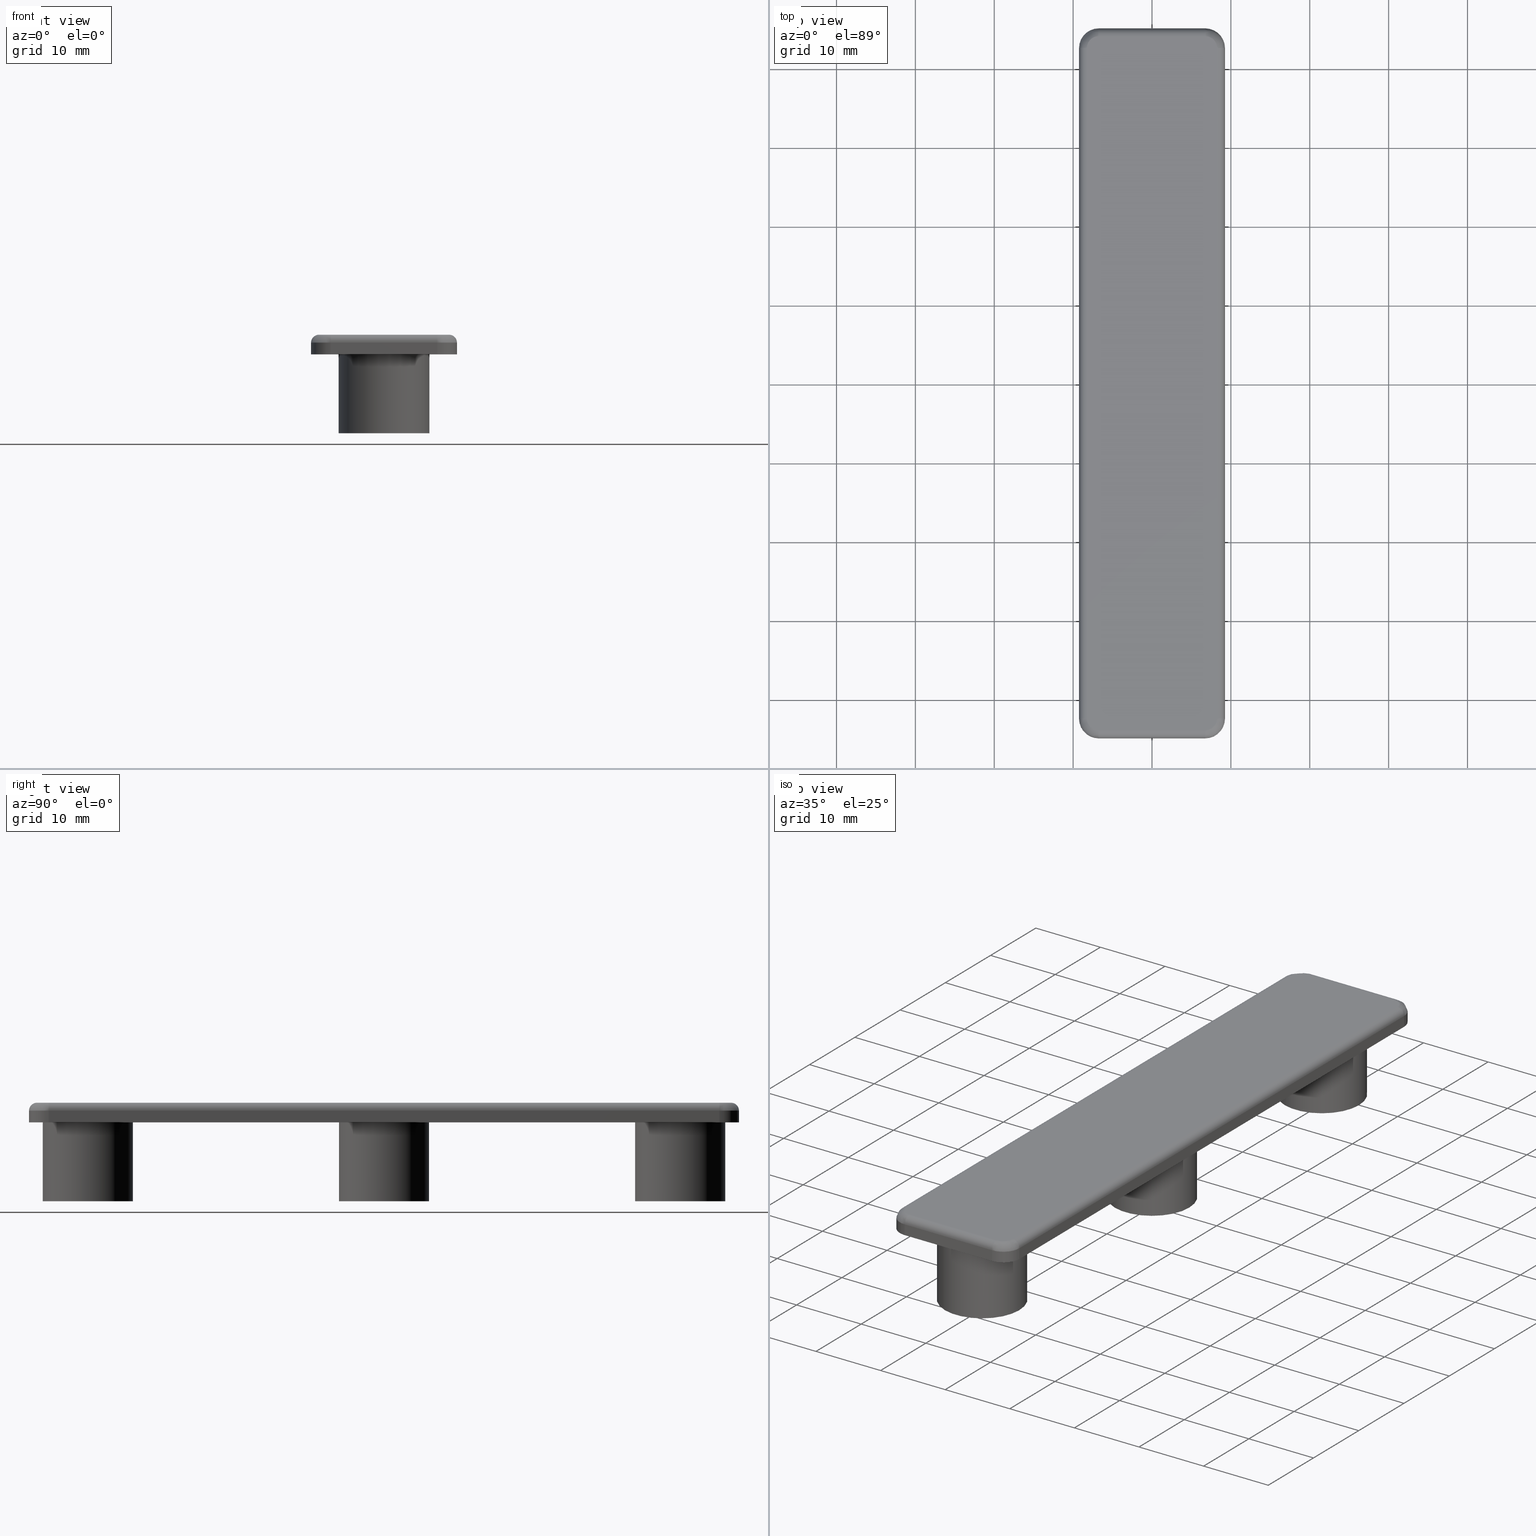
[diagram: canonical four-view strip — front | top / right | iso, engineering-drawing reading convention]
A machine part, canonical four-view strip (front | top / right | iso — engineering-drawing reading convention). The complete STEP part file that produces these views, byte-faithful:
ISO-10303-21;
HEADER;
/****************************************************************
 * Generated by software with PDE/Lib inside                    *
 * PDElib Version v4.4, created Mon 02/23/2004                  *
 * International Technegroup Inc. (www.iti-oh.com)              *
 ****************************************************************/
FILE_DESCRIPTION(('STEP AP203'),'2;1');
FILE_NAME('18.068.00.stp','2011-03-21T15:59:43',(''),(''),'2009.3.110','THINKDESIGN','');
FILE_SCHEMA(('CONFIG_CONTROL_DESIGN'));
ENDSEC;
DATA;
#2=CARTESIAN_POINT('',(11.100049733935066,-53.999955233543915,1.359364E-015));
#3=DIRECTION('',(0.0,0.0,-1.0));
#4=DIRECTION('',(-1.0,0.0,0.0));
#5=AXIS2_PLACEMENT_3D('',#2,#3,#4);
#6=PLANE('',#5);
#7=CARTESIAN_POINT('',(-6.749954999972943,44.999999999819920,-8.266311E-016));
#8=VERTEX_POINT('',#7);
#9=CARTESIAN_POINT('',(6.750044999972943,44.999999999819920,8.266421E-016));
#10=VERTEX_POINT('',#9);
#11=CARTESIAN_POINT('',(-6.749954999973063,44.999999999819991,-8.266311E-016));
#12=DIRECTION('',(1.0,0.0,0.0));
#13=VECTOR('',#12,13.499999999946006);
#14=LINE('',#11,#13);
#15=EDGE_CURVE('',#8,#10,#14,.T.);
#16=ORIENTED_EDGE('',*,*,#15,.T.);
#17=CARTESIAN_POINT('',(9.250044999962938,42.499999999829924,1.132804E-015));
#18=VERTEX_POINT('',#17);
#19=CARTESIAN_POINT('',(6.750044999972943,42.499999999829924,8.266421E-016));
#20=DIRECTION('',(1.224647E-016,0.0,-1.0));
#21=DIRECTION('',(-1.0,0.0,-1.224647E-016));
#22=AXIS2_PLACEMENT_3D('',#19,#20,#21);
#23=CIRCLE('',#22,2.499999999990000);
#24=EDGE_CURVE('',#10,#18,#23,.T.);
#25=ORIENTED_EDGE('',*,*,#24,.T.);
#26=CARTESIAN_POINT('',(9.250044999962938,-42.499954999830152,1.132804E-015));
#27=VERTEX_POINT('',#26);
#28=CARTESIAN_POINT('',(9.250044999962938,42.499999999829924,1.132804E-015));
#29=DIRECTION('',(0.0,-1.0,0.0));
#30=VECTOR('',#29,84.999954999660019);
#31=LINE('',#28,#30);
#32=EDGE_CURVE('',#18,#27,#31,.T.);
#33=ORIENTED_EDGE('',*,*,#32,.T.);
#34=CARTESIAN_POINT('',(6.750044999972943,-44.999954999820147,8.266421E-016));
#35=VERTEX_POINT('',#34);
#36=CARTESIAN_POINT('',(6.750044999972943,-42.499954999830152,8.266421E-016));
#37=DIRECTION('',(1.224647E-016,0.0,-1.0));
#38=DIRECTION('',(-1.0,0.0,-1.224647E-016));
#39=AXIS2_PLACEMENT_3D('',#36,#37,#38);
#40=CIRCLE('',#39,2.499999999990000);
#41=EDGE_CURVE('',#27,#35,#40,.T.);
#42=ORIENTED_EDGE('',*,*,#41,.T.);
#43=CARTESIAN_POINT('',(-6.749954999972943,-44.999954999820147,-8.266311E-016));
#44=VERTEX_POINT('',#43);
#45=CARTESIAN_POINT('',(6.750044999972943,-44.999954999820147,8.266421E-016));
#46=DIRECTION('',(-1.0,0.0,0.0));
#47=VECTOR('',#46,13.499999999946006);
#48=LINE('',#45,#47);
#49=EDGE_CURVE('',#35,#44,#48,.T.);
#50=ORIENTED_EDGE('',*,*,#49,.T.);
#51=CARTESIAN_POINT('',(-9.249954999962938,-42.499954999830152,-1.132793E-015));
#52=VERTEX_POINT('',#51);
#53=CARTESIAN_POINT('',(-6.749954999972943,-42.499954999830152,-8.266311E-016));
#54=DIRECTION('',(1.224647E-016,0.0,-1.0));
#55=DIRECTION('',(-1.0,0.0,-1.224647E-016));
#56=AXIS2_PLACEMENT_3D('',#53,#54,#55);
#57=CIRCLE('',#56,2.499999999990000);
#58=EDGE_CURVE('',#44,#52,#57,.T.);
#59=ORIENTED_EDGE('',*,*,#58,.T.);
#60=CARTESIAN_POINT('',(-9.249954999962938,42.499999999829924,-1.132793E-015));
#61=VERTEX_POINT('',#60);
#62=CARTESIAN_POINT('',(-9.249954999962938,-42.499954999830152,-1.132793E-015));
#63=DIRECTION('',(0.0,1.0,0.0));
#64=VECTOR('',#63,84.999954999660019);
#65=LINE('',#62,#64);
#66=EDGE_CURVE('',#52,#61,#65,.T.);
#67=ORIENTED_EDGE('',*,*,#66,.T.);
#68=CARTESIAN_POINT('',(-6.749954999972943,42.499999999829924,-8.266311E-016));
#69=DIRECTION('',(1.224647E-016,0.0,-1.0));
#70=DIRECTION('',(-1.0,0.0,-1.224647E-016));
#71=AXIS2_PLACEMENT_3D('',#68,#69,#70);
#72=CIRCLE('',#71,2.499999999990000);
#73=EDGE_CURVE('',#61,#8,#72,.T.);
#74=ORIENTED_EDGE('',*,*,#73,.T.);
#75=EDGE_LOOP('',(#16,#25,#33,#42,#50,#59,#67,#74));
#76=FACE_OUTER_BOUND('',#75,.T.);
#77=CARTESIAN_POINT('',(5.749999999977001,-37.549999999849661,7.041719E-016));
#78=VERTEX_POINT('',#77);
#79=CARTESIAN_POINT('',(-5.749999999976808,-37.549999999849661,-7.041719E-016));
#80=VERTEX_POINT('',#79);
#81=CARTESIAN_POINT('',(0.0,-37.549999999849661,0.0));
#82=DIRECTION('',(1.224647E-016,0.0,-1.0));
#83=DIRECTION('',(-1.0,0.0,-1.224647E-016));
#84=AXIS2_PLACEMENT_3D('',#81,#82,#83);
#85=CIRCLE('',#84,5.749999999977001);
#86=EDGE_CURVE('',#78,#80,#85,.T.);
#87=ORIENTED_EDGE('',*,*,#86,.F.);
#88=CARTESIAN_POINT('',(0.0,-37.549999999849661,0.0));
#89=DIRECTION('',(1.224647E-016,0.0,-1.0));
#90=DIRECTION('',(-1.0,0.0,-1.224647E-016));
#91=AXIS2_PLACEMENT_3D('',#88,#89,#90);
#92=CIRCLE('',#91,5.749999999977001);
#93=EDGE_CURVE('',#80,#78,#92,.T.);
#94=ORIENTED_EDGE('',*,*,#93,.F.);
#95=EDGE_LOOP('',(#87,#94));
#96=FACE_BOUND('',#95,.T.);
#97=CARTESIAN_POINT('',(5.749999999977001,0.0,7.041719E-016));
#98=VERTEX_POINT('',#97);
#99=CARTESIAN_POINT('',(-5.749999999976808,0.0,-7.041719E-016));
#100=VERTEX_POINT('',#99);
#101=CARTESIAN_POINT('',(0.0,0.0,0.0));
#102=DIRECTION('',(1.224647E-016,0.0,-1.0));
#103=DIRECTION('',(-1.0,0.0,-1.224647E-016));
#104=AXIS2_PLACEMENT_3D('',#101,#102,#103);
#105=CIRCLE('',#104,5.749999999977001);
#106=EDGE_CURVE('',#98,#100,#105,.T.);
#107=ORIENTED_EDGE('',*,*,#106,.F.);
#108=CARTESIAN_POINT('',(0.0,0.0,0.0));
#109=DIRECTION('',(1.224647E-016,0.0,-1.0));
#110=DIRECTION('',(-1.0,0.0,-1.224647E-016));
#111=AXIS2_PLACEMENT_3D('',#108,#109,#110);
#112=CIRCLE('',#111,5.749999999977001);
#113=EDGE_CURVE('',#100,#98,#112,.T.);
#114=ORIENTED_EDGE('',*,*,#113,.F.);
#115=EDGE_LOOP('',(#107,#114));
#116=FACE_BOUND('',#115,.T.);
#117=CARTESIAN_POINT('',(5.749999999977001,37.549999999849661,7.041719E-016));
#118=VERTEX_POINT('',#117);
#119=CARTESIAN_POINT('',(-5.749999999976808,37.549999999849661,-7.041719E-016));
#120=VERTEX_POINT('',#119);
#121=CARTESIAN_POINT('',(0.0,37.549999999849661,0.0));
#122=DIRECTION('',(1.224647E-016,0.0,-1.0));
#123=DIRECTION('',(-1.0,0.0,-1.224647E-016));
#124=AXIS2_PLACEMENT_3D('',#121,#122,#123);
#125=CIRCLE('',#124,5.749999999977001);
#126=EDGE_CURVE('',#118,#120,#125,.T.);
#127=ORIENTED_EDGE('',*,*,#126,.F.);
#128=CARTESIAN_POINT('',(0.0,37.549999999849661,0.0));
#129=DIRECTION('',(1.224647E-016,0.0,-1.0));
#130=DIRECTION('',(-1.0,0.0,-1.224647E-016));
#131=AXIS2_PLACEMENT_3D('',#128,#129,#130);
#132=CIRCLE('',#131,5.749999999977001);
#133=EDGE_CURVE('',#120,#118,#132,.T.);
#134=ORIENTED_EDGE('',*,*,#133,.F.);
#135=EDGE_LOOP('',(#127,#134));
#136=FACE_BOUND('',#135,.T.);
#137=ADVANCED_FACE('',(#76,#96,#116,#136),#6,.T.);
#138=CARTESIAN_POINT('',(11.100049733935066,-53.999955233543915,1.359364E-015));
#139=DIRECTION('',(0.0,0.0,-1.0));
#140=DIRECTION('',(-1.0,0.0,0.0));
#141=AXIS2_PLACEMENT_3D('',#138,#139,#140);
#142=PLANE('',#141);
#143=CARTESIAN_POINT('',(4.999999999980001,37.549999999849661,6.123234E-016));
#144=VERTEX_POINT('',#143);
#145=CARTESIAN_POINT('',(-4.999999999979991,37.549999999849661,-6.123234E-016));
#146=VERTEX_POINT('',#145);
#147=CARTESIAN_POINT('',(0.0,37.549999999849661,0.0));
#148=DIRECTION('',(-1.224647E-016,0.0,1.0));
#149=DIRECTION('',(-1.0,0.0,-1.224647E-016));
#150=AXIS2_PLACEMENT_3D('',#147,#148,#149);
#151=CIRCLE('',#150,4.999999999980001);
#152=EDGE_CURVE('',#144,#146,#151,.T.);
#153=ORIENTED_EDGE('',*,*,#152,.F.);
#154=CARTESIAN_POINT('',(0.0,37.549999999849661,0.0));
#155=DIRECTION('',(-1.224647E-016,0.0,1.0));
#156=DIRECTION('',(-1.0,0.0,-1.224647E-016));
#157=AXIS2_PLACEMENT_3D('',#154,#155,#156);
#158=CIRCLE('',#157,4.999999999980001);
#159=EDGE_CURVE('',#146,#144,#158,.T.);
#160=ORIENTED_EDGE('',*,*,#159,.F.);
#161=EDGE_LOOP('',(#153,#160));
#162=FACE_OUTER_BOUND('',#161,.T.);
#163=ADVANCED_FACE('',(#162),#142,.T.);
#164=CARTESIAN_POINT('',(11.100049733935066,-53.999955233543915,1.359364E-015));
#165=DIRECTION('',(0.0,0.0,-1.0));
#166=DIRECTION('',(-1.0,0.0,0.0));
#167=AXIS2_PLACEMENT_3D('',#164,#165,#166);
#168=PLANE('',#167);
#169=CARTESIAN_POINT('',(4.999999999980001,0.0,6.123234E-016));
#170=VERTEX_POINT('',#169);
#171=CARTESIAN_POINT('',(-4.999999999979991,0.0,-6.123234E-016));
#172=VERTEX_POINT('',#171);
#173=CARTESIAN_POINT('',(0.0,0.0,0.0));
#174=DIRECTION('',(-1.224647E-016,0.0,1.0));
#175=DIRECTION('',(-1.0,0.0,-1.224647E-016));
#176=AXIS2_PLACEMENT_3D('',#173,#174,#175);
#177=CIRCLE('',#176,4.999999999980001);
#178=EDGE_CURVE('',#170,#172,#177,.T.);
#179=ORIENTED_EDGE('',*,*,#178,.F.);
#180=CARTESIAN_POINT('',(0.0,0.0,0.0));
#181=DIRECTION('',(-1.224647E-016,0.0,1.0));
#182=DIRECTION('',(-1.0,0.0,-1.224647E-016));
#183=AXIS2_PLACEMENT_3D('',#180,#181,#182);
#184=CIRCLE('',#183,4.999999999980001);
#185=EDGE_CURVE('',#172,#170,#184,.T.);
#186=ORIENTED_EDGE('',*,*,#185,.F.);
#187=EDGE_LOOP('',(#179,#186));
#188=FACE_OUTER_BOUND('',#187,.T.);
#189=ADVANCED_FACE('',(#188),#168,.T.);
#190=CARTESIAN_POINT('',(11.100049733935066,-53.999955233543915,1.359364E-015));
#191=DIRECTION('',(0.0,0.0,-1.0));
#192=DIRECTION('',(-1.0,0.0,0.0));
#193=AXIS2_PLACEMENT_3D('',#190,#191,#192);
#194=PLANE('',#193);
#195=CARTESIAN_POINT('',(4.999999999980001,-37.549999999849661,6.123234E-016));
#196=VERTEX_POINT('',#195);
#197=CARTESIAN_POINT('',(-4.999999999979991,-37.549999999849661,-6.123234E-016));
#198=VERTEX_POINT('',#197);
#199=CARTESIAN_POINT('',(0.0,-37.549999999849661,0.0));
#200=DIRECTION('',(-1.224647E-016,0.0,1.0));
#201=DIRECTION('',(-1.0,0.0,-1.224647E-016));
#202=AXIS2_PLACEMENT_3D('',#199,#200,#201);
#203=CIRCLE('',#202,4.999999999980001);
#204=EDGE_CURVE('',#196,#198,#203,.T.);
#205=ORIENTED_EDGE('',*,*,#204,.F.);
#206=CARTESIAN_POINT('',(0.0,-37.549999999849661,0.0));
#207=DIRECTION('',(-1.224647E-016,0.0,1.0));
#208=DIRECTION('',(-1.0,0.0,-1.224647E-016));
#209=AXIS2_PLACEMENT_3D('',#206,#207,#208);
#210=CIRCLE('',#209,4.999999999980001);
#211=EDGE_CURVE('',#198,#196,#210,.T.);
#212=ORIENTED_EDGE('',*,*,#211,.F.);
#213=EDGE_LOOP('',(#205,#212));
#214=FACE_OUTER_BOUND('',#213,.T.);
#215=ADVANCED_FACE('',(#214),#194,.T.);
#216=CARTESIAN_POINT('',(0.0,-37.549999999849661,0.0));
#217=DIRECTION('',(1.224647E-016,0.0,-1.0));
#218=DIRECTION('',(-1.0,0.0,-1.224647E-016));
#219=AXIS2_PLACEMENT_3D('',#216,#217,#218);
#220=CYLINDRICAL_SURFACE('',#219,5.749999999977001);
#221=CARTESIAN_POINT('',(5.749999999977002,-37.549999999849661,-10.0));
#222=VERTEX_POINT('',#221);
#223=CARTESIAN_POINT('',(-5.749999999976807,-37.549999999849661,-10.0));
#224=VERTEX_POINT('',#223);
#225=CARTESIAN_POINT('',(1.224647E-015,-37.549999999849661,-10.0));
#226=DIRECTION('',(1.224647E-016,0.0,-1.0));
#227=DIRECTION('',(-1.0,0.0,-1.224647E-016));
#228=AXIS2_PLACEMENT_3D('',#225,#226,#227);
#229=CIRCLE('',#228,5.749999999977001);
#230=EDGE_CURVE('',#222,#224,#229,.T.);
#231=ORIENTED_EDGE('',*,*,#230,.F.);
#232=CARTESIAN_POINT('',(1.224647E-015,-37.549999999849661,-10.0));
#233=DIRECTION('',(1.224647E-016,0.0,-1.0));
#234=DIRECTION('',(-1.0,0.0,-1.224647E-016));
#235=AXIS2_PLACEMENT_3D('',#232,#233,#234);
#236=CIRCLE('',#235,5.749999999977001);
#237=EDGE_CURVE('',#224,#222,#236,.T.);
#238=ORIENTED_EDGE('',*,*,#237,.F.);
#239=CARTESIAN_POINT('',(-5.749999999976808,-37.549999999849661,-7.041719E-016));
#240=DIRECTION('',(0.0,0.0,-1.0));
#241=VECTOR('',#240,10.0);
#242=LINE('',#239,#241);
#243=EDGE_CURVE('',#80,#224,#242,.T.);
#244=ORIENTED_EDGE('',*,*,#243,.F.);
#245=ORIENTED_EDGE('',*,*,#93,.T.);
#246=ORIENTED_EDGE('',*,*,#86,.T.);
#247=ORIENTED_EDGE('',*,*,#243,.T.);
#248=EDGE_LOOP('',(#231,#238,#244,#245,#246,#247));
#249=FACE_OUTER_BOUND('',#248,.T.);
#250=ADVANCED_FACE('',(#249),#220,.T.);
#251=CARTESIAN_POINT('',(0.0,-37.549999999849661,0.0));
#252=DIRECTION('',(-1.224647E-016,0.0,1.0));
#253=DIRECTION('',(-1.0,-2.449294E-016,-1.224647E-016));
#254=AXIS2_PLACEMENT_3D('',#251,#252,#253);
#255=CYLINDRICAL_SURFACE('',#254,4.999999999980001);
#256=CARTESIAN_POINT('',(4.999999999980002,-37.549999999849661,-10.0));
#257=VERTEX_POINT('',#256);
#258=CARTESIAN_POINT('',(-4.999999999979990,-37.549999999849661,-10.0));
#259=VERTEX_POINT('',#258);
#260=CARTESIAN_POINT('',(1.224647E-015,-37.549999999849661,-10.0));
#261=DIRECTION('',(-1.224647E-016,0.0,1.0));
#262=DIRECTION('',(-1.0,0.0,-1.224647E-016));
#263=AXIS2_PLACEMENT_3D('',#260,#261,#262);
#264=CIRCLE('',#263,4.999999999980001);
#265=EDGE_CURVE('',#257,#259,#264,.T.);
#266=ORIENTED_EDGE('',*,*,#265,.F.);
#267=CARTESIAN_POINT('',(1.224647E-015,-37.549999999849661,-10.0));
#268=DIRECTION('',(-1.224647E-016,0.0,1.0));
#269=DIRECTION('',(-1.0,0.0,-1.224647E-016));
#270=AXIS2_PLACEMENT_3D('',#267,#268,#269);
#271=CIRCLE('',#270,4.999999999980001);
#272=EDGE_CURVE('',#259,#257,#271,.T.);
#273=ORIENTED_EDGE('',*,*,#272,.F.);
#274=CARTESIAN_POINT('',(-4.999999999979991,-37.549999999849661,-6.123234E-016));
#275=DIRECTION('',(0.0,0.0,-1.0));
#276=VECTOR('',#275,10.0);
#277=LINE('',#274,#276);
#278=EDGE_CURVE('',#198,#259,#277,.T.);
#279=ORIENTED_EDGE('',*,*,#278,.F.);
#280=ORIENTED_EDGE('',*,*,#211,.T.);
#281=ORIENTED_EDGE('',*,*,#204,.T.);
#282=ORIENTED_EDGE('',*,*,#278,.T.);
#283=EDGE_LOOP('',(#266,#273,#279,#280,#281,#282));
#284=FACE_OUTER_BOUND('',#283,.T.);
#285=ADVANCED_FACE('',(#284),#255,.F.);
#286=CARTESIAN_POINT('',(6.900004733746756,-44.450004733568676,-10.0));
#287=DIRECTION('',(0.0,0.0,-1.0));
#288=DIRECTION('',(-1.0,0.0,0.0));
#289=AXIS2_PLACEMENT_3D('',#286,#287,#288);
#290=PLANE('',#289);
#291=ORIENTED_EDGE('',*,*,#237,.T.);
#292=ORIENTED_EDGE('',*,*,#230,.T.);
#293=EDGE_LOOP('',(#291,#292));
#294=FACE_OUTER_BOUND('',#293,.T.);
#295=ORIENTED_EDGE('',*,*,#272,.T.);
#296=ORIENTED_EDGE('',*,*,#265,.T.);
#297=EDGE_LOOP('',(#295,#296));
#298=FACE_BOUND('',#297,.T.);
#299=ADVANCED_FACE('',(#294,#298),#290,.T.);
#300=CARTESIAN_POINT('',(0.0,0.0,0.0));
#301=DIRECTION('',(1.224647E-016,0.0,-1.0));
#302=DIRECTION('',(-1.0,0.0,-1.224647E-016));
#303=AXIS2_PLACEMENT_3D('',#300,#301,#302);
#304=CYLINDRICAL_SURFACE('',#303,5.749999999977001);
#305=CARTESIAN_POINT('',(5.749999999977002,0.0,-10.0));
#306=VERTEX_POINT('',#305);
#307=CARTESIAN_POINT('',(-5.749999999976807,0.0,-10.0));
#308=VERTEX_POINT('',#307);
#309=CARTESIAN_POINT('',(1.224647E-015,0.0,-10.0));
#310=DIRECTION('',(1.224647E-016,0.0,-1.0));
#311=DIRECTION('',(-1.0,0.0,-1.224647E-016));
#312=AXIS2_PLACEMENT_3D('',#309,#310,#311);
#313=CIRCLE('',#312,5.749999999977001);
#314=EDGE_CURVE('',#306,#308,#313,.T.);
#315=ORIENTED_EDGE('',*,*,#314,.F.);
#316=CARTESIAN_POINT('',(1.224647E-015,0.0,-10.0));
#317=DIRECTION('',(1.224647E-016,0.0,-1.0));
#318=DIRECTION('',(-1.0,0.0,-1.224647E-016));
#319=AXIS2_PLACEMENT_3D('',#316,#317,#318);
#320=CIRCLE('',#319,5.749999999977001);
#321=EDGE_CURVE('',#308,#306,#320,.T.);
#322=ORIENTED_EDGE('',*,*,#321,.F.);
#323=CARTESIAN_POINT('',(-5.749999999976808,0.0,-7.041719E-016));
#324=DIRECTION('',(0.0,0.0,-1.0));
#325=VECTOR('',#324,10.0);
#326=LINE('',#323,#325);
#327=EDGE_CURVE('',#100,#308,#326,.T.);
#328=ORIENTED_EDGE('',*,*,#327,.F.);
#329=ORIENTED_EDGE('',*,*,#113,.T.);
#330=ORIENTED_EDGE('',*,*,#106,.T.);
#331=ORIENTED_EDGE('',*,*,#327,.T.);
#332=EDGE_LOOP('',(#315,#322,#328,#329,#330,#331));
#333=FACE_OUTER_BOUND('',#332,.T.);
#334=ADVANCED_FACE('',(#333),#304,.T.);
#335=CARTESIAN_POINT('',(0.0,0.0,0.0));
#336=DIRECTION('',(-1.224647E-016,0.0,1.0));
#337=DIRECTION('',(-1.0,-2.449294E-016,-1.224647E-016));
#338=AXIS2_PLACEMENT_3D('',#335,#336,#337);
#339=CYLINDRICAL_SURFACE('',#338,4.999999999980001);
#340=CARTESIAN_POINT('',(4.999999999980002,0.0,-10.0));
#341=VERTEX_POINT('',#340);
#342=CARTESIAN_POINT('',(-4.999999999979990,0.0,-10.0));
#343=VERTEX_POINT('',#342);
#344=CARTESIAN_POINT('',(1.224647E-015,0.0,-10.0));
#345=DIRECTION('',(-1.224647E-016,0.0,1.0));
#346=DIRECTION('',(-1.0,0.0,-1.224647E-016));
#347=AXIS2_PLACEMENT_3D('',#344,#345,#346);
#348=CIRCLE('',#347,4.999999999980001);
#349=EDGE_CURVE('',#341,#343,#348,.T.);
#350=ORIENTED_EDGE('',*,*,#349,.F.);
#351=CARTESIAN_POINT('',(1.224647E-015,0.0,-10.0));
#352=DIRECTION('',(-1.224647E-016,0.0,1.0));
#353=DIRECTION('',(-1.0,0.0,-1.224647E-016));
#354=AXIS2_PLACEMENT_3D('',#351,#352,#353);
#355=CIRCLE('',#354,4.999999999980001);
#356=EDGE_CURVE('',#343,#341,#355,.T.);
#357=ORIENTED_EDGE('',*,*,#356,.F.);
#358=CARTESIAN_POINT('',(-4.999999999979991,0.0,-6.123234E-016));
#359=DIRECTION('',(0.0,0.0,-1.0));
#360=VECTOR('',#359,10.0);
#361=LINE('',#358,#360);
#362=EDGE_CURVE('',#172,#343,#361,.T.);
#363=ORIENTED_EDGE('',*,*,#362,.F.);
#364=ORIENTED_EDGE('',*,*,#185,.T.);
#365=ORIENTED_EDGE('',*,*,#178,.T.);
#366=ORIENTED_EDGE('',*,*,#362,.T.);
#367=EDGE_LOOP('',(#350,#357,#363,#364,#365,#366));
#368=FACE_OUTER_BOUND('',#367,.T.);
#369=ADVANCED_FACE('',(#368),#339,.F.);
#370=CARTESIAN_POINT('',(6.900004733847255,-6.900004733818605,-10.0));
#371=DIRECTION('',(0.0,0.0,-1.0));
#372=DIRECTION('',(-1.0,0.0,0.0));
#373=AXIS2_PLACEMENT_3D('',#370,#371,#372);
#374=PLANE('',#373);
#375=ORIENTED_EDGE('',*,*,#321,.T.);
#376=ORIENTED_EDGE('',*,*,#314,.T.);
#377=EDGE_LOOP('',(#375,#376));
#378=FACE_OUTER_BOUND('',#377,.T.);
#379=ORIENTED_EDGE('',*,*,#356,.T.);
#380=ORIENTED_EDGE('',*,*,#349,.T.);
#381=EDGE_LOOP('',(#379,#380));
#382=FACE_BOUND('',#381,.T.);
#383=ADVANCED_FACE('',(#378,#382),#374,.T.);
#384=CARTESIAN_POINT('',(0.0,37.549999999849661,0.0));
#385=DIRECTION('',(1.224647E-016,0.0,-1.0));
#386=DIRECTION('',(-1.0,0.0,-1.224647E-016));
#387=AXIS2_PLACEMENT_3D('',#384,#385,#386);
#388=CYLINDRICAL_SURFACE('',#387,5.749999999977001);
#389=CARTESIAN_POINT('',(5.749999999977002,37.549999999849661,-10.0));
#390=VERTEX_POINT('',#389);
#391=CARTESIAN_POINT('',(-5.749999999976807,37.549999999849661,-10.0));
#392=VERTEX_POINT('',#391);
#393=CARTESIAN_POINT('',(1.224647E-015,37.549999999849661,-10.0));
#394=DIRECTION('',(1.224647E-016,0.0,-1.0));
#395=DIRECTION('',(-1.0,0.0,-1.224647E-016));
#396=AXIS2_PLACEMENT_3D('',#393,#394,#395);
#397=CIRCLE('',#396,5.749999999977001);
#398=EDGE_CURVE('',#390,#392,#397,.T.);
#399=ORIENTED_EDGE('',*,*,#398,.F.);
#400=CARTESIAN_POINT('',(1.224647E-015,37.549999999849661,-10.0));
#401=DIRECTION('',(1.224647E-016,0.0,-1.0));
#402=DIRECTION('',(-1.0,0.0,-1.224647E-016));
#403=AXIS2_PLACEMENT_3D('',#400,#401,#402);
#404=CIRCLE('',#403,5.749999999977001);
#405=EDGE_CURVE('',#392,#390,#404,.T.);
#406=ORIENTED_EDGE('',*,*,#405,.F.);
#407=CARTESIAN_POINT('',(-5.749999999976808,37.549999999849661,-7.041719E-016));
#408=DIRECTION('',(0.0,0.0,-1.0));
#409=VECTOR('',#408,10.0);
#410=LINE('',#407,#409);
#411=EDGE_CURVE('',#120,#392,#410,.T.);
#412=ORIENTED_EDGE('',*,*,#411,.F.);
#413=ORIENTED_EDGE('',*,*,#133,.T.);
#414=ORIENTED_EDGE('',*,*,#126,.T.);
#415=ORIENTED_EDGE('',*,*,#411,.T.);
#416=EDGE_LOOP('',(#399,#406,#412,#413,#414,#415));
#417=FACE_OUTER_BOUND('',#416,.T.);
#418=ADVANCED_FACE('',(#417),#388,.T.);
#419=CARTESIAN_POINT('',(0.0,37.549999999849661,0.0));
#420=DIRECTION('',(-1.224647E-016,0.0,1.0));
#421=DIRECTION('',(-1.0,-2.449294E-016,-1.224647E-016));
#422=AXIS2_PLACEMENT_3D('',#419,#420,#421);
#423=CYLINDRICAL_SURFACE('',#422,4.999999999980001);
#424=CARTESIAN_POINT('',(4.999999999980002,37.549999999849661,-10.0));
#425=VERTEX_POINT('',#424);
#426=CARTESIAN_POINT('',(-4.999999999979990,37.549999999849661,-10.0));
#427=VERTEX_POINT('',#426);
#428=CARTESIAN_POINT('',(1.224647E-015,37.549999999849661,-10.0));
#429=DIRECTION('',(-1.224647E-016,0.0,1.0));
#430=DIRECTION('',(-1.0,0.0,-1.224647E-016));
#431=AXIS2_PLACEMENT_3D('',#428,#429,#430);
#432=CIRCLE('',#431,4.999999999980001);
#433=EDGE_CURVE('',#425,#427,#432,.T.);
#434=ORIENTED_EDGE('',*,*,#433,.F.);
#435=CARTESIAN_POINT('',(1.224647E-015,37.549999999849661,-10.0));
#436=DIRECTION('',(-1.224647E-016,0.0,1.0));
#437=DIRECTION('',(-1.0,0.0,-1.224647E-016));
#438=AXIS2_PLACEMENT_3D('',#435,#436,#437);
#439=CIRCLE('',#438,4.999999999980001);
#440=EDGE_CURVE('',#427,#425,#439,.T.);
#441=ORIENTED_EDGE('',*,*,#440,.F.);
#442=CARTESIAN_POINT('',(-4.999999999979991,37.549999999849661,-6.123234E-016));
#443=DIRECTION('',(0.0,0.0,-1.0));
#444=VECTOR('',#443,10.0);
#445=LINE('',#442,#444);
#446=EDGE_CURVE('',#146,#427,#445,.T.);
#447=ORIENTED_EDGE('',*,*,#446,.F.);
#448=ORIENTED_EDGE('',*,*,#159,.T.);
#449=ORIENTED_EDGE('',*,*,#152,.T.);
#450=ORIENTED_EDGE('',*,*,#446,.T.);
#451=EDGE_LOOP('',(#434,#441,#447,#448,#449,#450));
#452=FACE_OUTER_BOUND('',#451,.T.);
#453=ADVANCED_FACE('',(#452),#423,.F.);
#454=CARTESIAN_POINT('',(6.900004733947299,30.649995265930556,-10.0));
#455=DIRECTION('',(0.0,0.0,-1.0));
#456=DIRECTION('',(-1.0,0.0,0.0));
#457=AXIS2_PLACEMENT_3D('',#454,#455,#456);
#458=PLANE('',#457);
#459=ORIENTED_EDGE('',*,*,#405,.T.);
#460=ORIENTED_EDGE('',*,*,#398,.T.);
#461=EDGE_LOOP('',(#459,#460));
#462=FACE_OUTER_BOUND('',#461,.T.);
#463=ORIENTED_EDGE('',*,*,#440,.T.);
#464=ORIENTED_EDGE('',*,*,#433,.T.);
#465=EDGE_LOOP('',(#463,#464));
#466=FACE_BOUND('',#465,.T.);
#467=ADVANCED_FACE('',(#462,#466),#458,.T.);
#468=CARTESIAN_POINT('',(11.100049733935066,-53.999955233543915,2.500000000000001));
#469=DIRECTION('',(0.0,0.0,-1.0));
#470=DIRECTION('',(-1.0,0.0,0.0));
#471=AXIS2_PLACEMENT_3D('',#468,#469,#470);
#472=PLANE('',#471);
#473=CARTESIAN_POINT('',(6.750044999972943,-43.999954999820147,2.500000000000001));
#474=VERTEX_POINT('',#473);
#475=CARTESIAN_POINT('',(-6.749954999972943,-43.999954999820154,2.499999999999999));
#476=VERTEX_POINT('',#475);
#477=CARTESIAN_POINT('',(6.750044999972943,-43.999954999820147,2.500000000000001));
#478=DIRECTION('',(-1.0,0.0,0.0));
#479=VECTOR('',#478,13.499999999945885);
#480=LINE('',#477,#479);
#481=EDGE_CURVE('',#474,#476,#480,.T.);
#482=ORIENTED_EDGE('',*,*,#481,.F.);
#483=CARTESIAN_POINT('',(8.250044999962944,-42.499954999830152,2.500000000000001));
#484=VERTEX_POINT('',#483);
#485=CARTESIAN_POINT('',(6.750044999972943,-42.499954999830152,2.500000000000001));
#486=DIRECTION('',(1.224647E-016,0.0,-1.0));
#487=DIRECTION('',(-1.0,0.0,-1.224647E-016));
#488=AXIS2_PLACEMENT_3D('',#485,#486,#487);
#489=CIRCLE('',#488,1.499999999990000);
#490=EDGE_CURVE('',#484,#474,#489,.T.);
#491=ORIENTED_EDGE('',*,*,#490,.F.);
#492=CARTESIAN_POINT('',(8.250044999962938,42.499999999829924,2.500000000000001));
#493=VERTEX_POINT('',#492);
#494=CARTESIAN_POINT('',(8.250044999962938,42.499999999829924,2.500000000000001));
#495=DIRECTION('',(0.0,-1.0,0.0));
#496=VECTOR('',#495,84.999954999660076);
#497=LINE('',#494,#496);
#498=EDGE_CURVE('',#493,#484,#497,.T.);
#499=ORIENTED_EDGE('',*,*,#498,.F.);
#500=CARTESIAN_POINT('',(6.750044999972942,43.999999999819927,2.500000000000001));
#501=VERTEX_POINT('',#500);
#502=CARTESIAN_POINT('',(6.750044999972943,42.499999999829924,2.500000000000001));
#503=DIRECTION('',(1.224647E-016,0.0,-1.0));
#504=DIRECTION('',(-1.0,0.0,-1.224647E-016));
#505=AXIS2_PLACEMENT_3D('',#502,#503,#504);
#506=CIRCLE('',#505,1.499999999990000);
#507=EDGE_CURVE('',#501,#493,#506,.T.);
#508=ORIENTED_EDGE('',*,*,#507,.F.);
#509=CARTESIAN_POINT('',(-6.749954999972943,43.999999999819920,2.499999999999999));
#510=VERTEX_POINT('',#509);
#511=CARTESIAN_POINT('',(-6.749954999972943,43.999999999819920,2.499999999999999));
#512=DIRECTION('',(1.0,0.0,0.0));
#513=VECTOR('',#512,13.499999999945885);
#514=LINE('',#511,#513);
#515=EDGE_CURVE('',#510,#501,#514,.T.);
#516=ORIENTED_EDGE('',*,*,#515,.F.);
#517=CARTESIAN_POINT('',(-8.249954999962943,42.499999999829924,2.499999999999999));
#518=VERTEX_POINT('',#517);
#519=CARTESIAN_POINT('',(-6.749954999972943,42.499999999829924,2.499999999999999));
#520=DIRECTION('',(1.224647E-016,0.0,-1.0));
#521=DIRECTION('',(-1.0,0.0,-1.224647E-016));
#522=AXIS2_PLACEMENT_3D('',#519,#520,#521);
#523=CIRCLE('',#522,1.499999999990000);
#524=EDGE_CURVE('',#518,#510,#523,.T.);
#525=ORIENTED_EDGE('',*,*,#524,.F.);
#526=CARTESIAN_POINT('',(-8.249954999962943,-42.499954999830152,2.499999999999999));
#527=VERTEX_POINT('',#526);
#528=CARTESIAN_POINT('',(-8.249954999962938,-42.499954999830152,2.499999999999999));
#529=DIRECTION('',(0.0,1.0,0.0));
#530=VECTOR('',#529,84.999954999660076);
#531=LINE('',#528,#530);
#532=EDGE_CURVE('',#527,#518,#531,.T.);
#533=ORIENTED_EDGE('',*,*,#532,.F.);
#534=CARTESIAN_POINT('',(-6.749954999972943,-42.499954999830152,2.499999999999999));
#535=DIRECTION('',(1.224647E-016,0.0,-1.0));
#536=DIRECTION('',(-1.0,0.0,-1.224647E-016));
#537=AXIS2_PLACEMENT_3D('',#534,#535,#536);
#538=CIRCLE('',#537,1.499999999990000);
#539=EDGE_CURVE('',#476,#527,#538,.T.);
#540=ORIENTED_EDGE('',*,*,#539,.F.);
#541=EDGE_LOOP('',(#482,#491,#499,#508,#516,#525,#533,#540));
#542=FACE_OUTER_BOUND('',#541,.T.);
#543=ADVANCED_FACE('',(#542),#472,.F.);
#544=CARTESIAN_POINT('',(-9.249954999962938,-42.499954999830152,-1.132793E-015));
#545=DIRECTION('',(1.0,0.0,0.0));
#546=DIRECTION('',(0.0,1.0,0.0));
#547=AXIS2_PLACEMENT_3D('',#544,#545,#546);
#548=PLANE('',#547);
#549=CARTESIAN_POINT('',(-9.249954999962943,-42.499954999830152,1.499999999999999));
#550=VERTEX_POINT('',#549);
#551=CARTESIAN_POINT('',(-9.249954999962938,-42.499954999830152,-1.132793E-015));
#552=DIRECTION('',(0.0,0.0,1.0));
#553=VECTOR('',#552,1.500000000000000);
#554=LINE('',#551,#553);
#555=EDGE_CURVE('',#52,#550,#554,.T.);
#556=ORIENTED_EDGE('',*,*,#555,.T.);
#557=CARTESIAN_POINT('',(-9.249954999962943,42.499999999829924,1.499999999999999));
#558=VERTEX_POINT('',#557);
#559=CARTESIAN_POINT('',(-9.249954999962938,-42.499954999830152,1.499999999999999));
#560=DIRECTION('',(0.0,1.0,0.0));
#561=VECTOR('',#560,84.999954999660076);
#562=LINE('',#559,#561);
#563=EDGE_CURVE('',#550,#558,#562,.T.);
#564=ORIENTED_EDGE('',*,*,#563,.T.);
#565=CARTESIAN_POINT('',(-9.249954999962938,42.499999999829924,-1.132793E-015));
#566=DIRECTION('',(0.0,0.0,1.0));
#567=VECTOR('',#566,1.500000000000000);
#568=LINE('',#565,#567);
#569=EDGE_CURVE('',#61,#558,#568,.T.);
#570=ORIENTED_EDGE('',*,*,#569,.F.);
#571=ORIENTED_EDGE('',*,*,#66,.F.);
#572=EDGE_LOOP('',(#556,#564,#570,#571));
#573=FACE_OUTER_BOUND('',#572,.T.);
#574=ADVANCED_FACE('',(#573),#548,.F.);
#575=CARTESIAN_POINT('',(-6.749954999972943,42.499999999829924,-8.266311E-016));
#576=DIRECTION('',(1.224647E-016,0.0,-1.0));
#577=DIRECTION('',(-1.0,0.0,-1.224647E-016));
#578=AXIS2_PLACEMENT_3D('',#575,#576,#577);
#579=CYLINDRICAL_SURFACE('',#578,2.499999999990000);
#580=ORIENTED_EDGE('',*,*,#73,.F.);
#581=ORIENTED_EDGE('',*,*,#569,.T.);
#582=CARTESIAN_POINT('',(-6.749954999972943,44.999999999819920,1.499999999999999));
#583=VERTEX_POINT('',#582);
#584=CARTESIAN_POINT('',(-6.749954999972943,42.499999999829924,1.499999999999999));
#585=DIRECTION('',(1.224647E-016,0.0,-1.0));
#586=DIRECTION('',(-1.0,0.0,-1.224647E-016));
#587=AXIS2_PLACEMENT_3D('',#584,#585,#586);
#588=CIRCLE('',#587,2.499999999990000);
#589=EDGE_CURVE('',#558,#583,#588,.T.);
#590=ORIENTED_EDGE('',*,*,#589,.T.);
#591=CARTESIAN_POINT('',(-6.749954999972943,44.999999999819920,-8.266311E-016));
#592=DIRECTION('',(0.0,0.0,1.0));
#593=VECTOR('',#592,1.500000000000000);
#594=LINE('',#591,#593);
#595=EDGE_CURVE('',#8,#583,#594,.T.);
#596=ORIENTED_EDGE('',*,*,#595,.F.);
#597=EDGE_LOOP('',(#580,#581,#590,#596));
#598=FACE_OUTER_BOUND('',#597,.T.);
#599=ADVANCED_FACE('',(#598),#579,.T.);
#600=CARTESIAN_POINT('',(-6.749954999972943,44.999999999819920,-8.266311E-016));
#601=DIRECTION('',(0.0,-1.0,0.0));
#602=DIRECTION('',(1.0,0.0,0.0));
#603=AXIS2_PLACEMENT_3D('',#600,#601,#602);
#604=PLANE('',#603);
#605=ORIENTED_EDGE('',*,*,#595,.T.);
#606=CARTESIAN_POINT('',(6.750044999972942,44.999999999819927,1.500000000000001));
#607=VERTEX_POINT('',#606);
#608=CARTESIAN_POINT('',(-6.749954999972943,44.999999999819920,1.499999999999999));
#609=DIRECTION('',(1.0,0.0,0.0));
#610=VECTOR('',#609,13.499999999945885);
#611=LINE('',#608,#610);
#612=EDGE_CURVE('',#583,#607,#611,.T.);
#613=ORIENTED_EDGE('',*,*,#612,.T.);
#614=CARTESIAN_POINT('',(6.750044999972943,44.999999999819920,8.266421E-016));
#615=DIRECTION('',(0.0,0.0,1.0));
#616=VECTOR('',#615,1.500000000000000);
#617=LINE('',#614,#616);
#618=EDGE_CURVE('',#10,#607,#617,.T.);
#619=ORIENTED_EDGE('',*,*,#618,.F.);
#620=ORIENTED_EDGE('',*,*,#15,.F.);
#621=EDGE_LOOP('',(#605,#613,#619,#620));
#622=FACE_OUTER_BOUND('',#621,.T.);
#623=ADVANCED_FACE('',(#622),#604,.F.);
#624=CARTESIAN_POINT('',(6.750044999972943,42.499999999829924,8.266421E-016));
#625=DIRECTION('',(1.224647E-016,0.0,-1.0));
#626=DIRECTION('',(-1.0,0.0,-1.224647E-016));
#627=AXIS2_PLACEMENT_3D('',#624,#625,#626);
#628=CYLINDRICAL_SURFACE('',#627,2.499999999990000);
#629=ORIENTED_EDGE('',*,*,#618,.T.);
#630=CARTESIAN_POINT('',(9.250044999962938,42.499999999829924,1.500000000000001));
#631=VERTEX_POINT('',#630);
#632=CARTESIAN_POINT('',(6.750044999972943,42.499999999829924,1.500000000000001));
#633=DIRECTION('',(1.224647E-016,0.0,-1.0));
#634=DIRECTION('',(-1.0,0.0,-1.224647E-016));
#635=AXIS2_PLACEMENT_3D('',#632,#633,#634);
#636=CIRCLE('',#635,2.499999999990000);
#637=EDGE_CURVE('',#607,#631,#636,.T.);
#638=ORIENTED_EDGE('',*,*,#637,.T.);
#639=CARTESIAN_POINT('',(9.250044999962938,42.499999999829924,1.132804E-015));
#640=DIRECTION('',(0.0,0.0,1.0));
#641=VECTOR('',#640,1.500000000000000);
#642=LINE('',#639,#641);
#643=EDGE_CURVE('',#18,#631,#642,.T.);
#644=ORIENTED_EDGE('',*,*,#643,.F.);
#645=ORIENTED_EDGE('',*,*,#24,.F.);
#646=EDGE_LOOP('',(#629,#638,#644,#645));
#647=FACE_OUTER_BOUND('',#646,.T.);
#648=ADVANCED_FACE('',(#647),#628,.T.);
#649=CARTESIAN_POINT('',(9.250044999962938,42.499999999829924,1.132804E-015));
#650=DIRECTION('',(-1.0,0.0,0.0));
#651=DIRECTION('',(0.0,-1.0,0.0));
#652=AXIS2_PLACEMENT_3D('',#649,#650,#651);
#653=PLANE('',#652);
#654=ORIENTED_EDGE('',*,*,#643,.T.);
#655=CARTESIAN_POINT('',(9.250044999962944,-42.499954999830152,1.500000000000001));
#656=VERTEX_POINT('',#655);
#657=CARTESIAN_POINT('',(9.250044999962938,42.499999999829924,1.500000000000001));
#658=DIRECTION('',(0.0,-1.0,0.0));
#659=VECTOR('',#658,84.999954999660076);
#660=LINE('',#657,#659);
#661=EDGE_CURVE('',#631,#656,#660,.T.);
#662=ORIENTED_EDGE('',*,*,#661,.T.);
#663=CARTESIAN_POINT('',(9.250044999962938,-42.499954999830152,1.132804E-015));
#664=DIRECTION('',(0.0,0.0,1.0));
#665=VECTOR('',#664,1.500000000000000);
#666=LINE('',#663,#665);
#667=EDGE_CURVE('',#27,#656,#666,.T.);
#668=ORIENTED_EDGE('',*,*,#667,.F.);
#669=ORIENTED_EDGE('',*,*,#32,.F.);
#670=EDGE_LOOP('',(#654,#662,#668,#669));
#671=FACE_OUTER_BOUND('',#670,.T.);
#672=ADVANCED_FACE('',(#671),#653,.F.);
#673=CARTESIAN_POINT('',(6.750044999972943,-42.499954999830152,8.266421E-016));
#674=DIRECTION('',(1.224647E-016,0.0,-1.0));
#675=DIRECTION('',(-1.0,0.0,-1.224647E-016));
#676=AXIS2_PLACEMENT_3D('',#673,#674,#675);
#677=CYLINDRICAL_SURFACE('',#676,2.499999999990000);
#678=ORIENTED_EDGE('',*,*,#667,.T.);
#679=CARTESIAN_POINT('',(6.750044999972943,-44.999954999820147,1.500000000000001));
#680=VERTEX_POINT('',#679);
#681=CARTESIAN_POINT('',(6.750044999972943,-42.499954999830152,1.500000000000001));
#682=DIRECTION('',(1.224647E-016,0.0,-1.0));
#683=DIRECTION('',(-1.0,0.0,-1.224647E-016));
#684=AXIS2_PLACEMENT_3D('',#681,#682,#683);
#685=CIRCLE('',#684,2.499999999990000);
#686=EDGE_CURVE('',#656,#680,#685,.T.);
#687=ORIENTED_EDGE('',*,*,#686,.T.);
#688=CARTESIAN_POINT('',(6.750044999972943,-44.999954999820147,8.266421E-016));
#689=DIRECTION('',(0.0,0.0,1.0));
#690=VECTOR('',#689,1.500000000000000);
#691=LINE('',#688,#690);
#692=EDGE_CURVE('',#35,#680,#691,.T.);
#693=ORIENTED_EDGE('',*,*,#692,.F.);
#694=ORIENTED_EDGE('',*,*,#41,.F.);
#695=EDGE_LOOP('',(#678,#687,#693,#694));
#696=FACE_OUTER_BOUND('',#695,.T.);
#697=ADVANCED_FACE('',(#696),#677,.T.);
#698=CARTESIAN_POINT('',(6.750044999972943,-44.999954999820147,8.266421E-016));
#699=DIRECTION('',(0.0,1.0,0.0));
#700=DIRECTION('',(-1.0,0.0,0.0));
#701=AXIS2_PLACEMENT_3D('',#698,#699,#700);
#702=PLANE('',#701);
#703=ORIENTED_EDGE('',*,*,#692,.T.);
#704=CARTESIAN_POINT('',(-6.749954999972943,-44.999954999820154,1.499999999999999));
#705=VERTEX_POINT('',#704);
#706=CARTESIAN_POINT('',(6.750044999972943,-44.999954999820147,1.500000000000001));
#707=DIRECTION('',(-1.0,0.0,0.0));
#708=VECTOR('',#707,13.499999999945885);
#709=LINE('',#706,#708);
#710=EDGE_CURVE('',#680,#705,#709,.T.);
#711=ORIENTED_EDGE('',*,*,#710,.T.);
#712=CARTESIAN_POINT('',(-6.749954999972943,-44.999954999820147,-8.266311E-016));
#713=DIRECTION('',(0.0,0.0,1.0));
#714=VECTOR('',#713,1.500000000000000);
#715=LINE('',#712,#714);
#716=EDGE_CURVE('',#44,#705,#715,.T.);
#717=ORIENTED_EDGE('',*,*,#716,.F.);
#718=ORIENTED_EDGE('',*,*,#49,.F.);
#719=EDGE_LOOP('',(#703,#711,#717,#718));
#720=FACE_OUTER_BOUND('',#719,.T.);
#721=ADVANCED_FACE('',(#720),#702,.F.);
#722=CARTESIAN_POINT('',(-6.749954999972943,-42.499954999830152,-8.266311E-016));
#723=DIRECTION('',(1.224647E-016,0.0,-1.0));
#724=DIRECTION('',(-5.053215E-016,-1.0,-7.395571E-032));
#725=AXIS2_PLACEMENT_3D('',#722,#723,#724);
#726=CYLINDRICAL_SURFACE('',#725,2.499999999990000);
#727=ORIENTED_EDGE('',*,*,#716,.T.);
#728=CARTESIAN_POINT('',(-6.749954999972943,-42.499954999830152,1.499999999999999));
#729=DIRECTION('',(1.224647E-016,0.0,-1.0));
#730=DIRECTION('',(-1.0,0.0,-1.224647E-016));
#731=AXIS2_PLACEMENT_3D('',#728,#729,#730);
#732=CIRCLE('',#731,2.499999999990000);
#733=EDGE_CURVE('',#705,#550,#732,.T.);
#734=ORIENTED_EDGE('',*,*,#733,.T.);
#735=ORIENTED_EDGE('',*,*,#555,.F.);
#736=ORIENTED_EDGE('',*,*,#58,.F.);
#737=EDGE_LOOP('',(#727,#734,#735,#736));
#738=FACE_OUTER_BOUND('',#737,.T.);
#739=ADVANCED_FACE('',(#738),#726,.T.);
#740=CARTESIAN_POINT('',(-6.749954999972943,-44.999954999820154,1.499999999999999));
#741=CARTESIAN_POINT('',(-6.749954999972943,-44.999954999820154,1.630060214677418));
#742=CARTESIAN_POINT('',(-6.749954999972943,-44.947916223704368,1.893027817343274));
#743=CARTESIAN_POINT('',(-6.749954999972944,-44.725367911293120,2.225412911472946));
#744=CARTESIAN_POINT('',(-6.749954999972943,-44.392982817163414,2.447961223884221));
#745=CARTESIAN_POINT('',(-6.749954999972943,-44.130015214497575,2.499999999999999));
#746=CARTESIAN_POINT('',(-6.749954999972943,-43.999954999820154,2.499999999999999));
#747=CARTESIAN_POINT('',(-7.075105536665190,-44.999954999820119,1.499999999999999));
#748=CARTESIAN_POINT('',(-7.075105536665190,-44.999954999820119,1.630060214677418));
#749=CARTESIAN_POINT('',(-7.068337362272022,-44.947916223704311,1.893027817343274));
#750=CARTESIAN_POINT('',(-7.039392680983716,-44.725367911293120,2.225412911472947));
#751=CARTESIAN_POINT('',(-6.996162604285633,-44.392982817163464,2.447961223884220));
#752=CARTESIAN_POINT('',(-6.961960981429707,-44.130015214497597,2.499999999999999));
#753=CARTESIAN_POINT('',(-6.945045321987770,-43.999954999820147,2.499999999999999));
#754=CARTESIAN_POINT('',(-7.732524543327198,-44.869858059531232,1.499999999999999));
#755=CARTESIAN_POINT('',(-7.732524543327198,-44.869858059531232,1.630060214677418));
#756=CARTESIAN_POINT('',(-7.712071856733197,-44.820527317635097,1.893027817343273));
#757=CARTESIAN_POINT('',(-7.624604179252767,-44.609560147028311,2.225412911472947));
#758=CARTESIAN_POINT('',(-7.493967591189544,-44.294471966396259,2.447961223884219));
#759=CARTESIAN_POINT('',(-7.390614008281789,-44.045188875931231,2.499999999999999));
#760=CARTESIAN_POINT('',(-7.339496725983921,-43.921896835646997,2.499999999999999));
#761=CARTESIAN_POINT('',(-8.563487278648063,-44.313487278505278,1.499999999999999));
#762=CARTESIAN_POINT('',(-8.563487278648063,-44.313487278505278,1.630060214677418));
#763=CARTESIAN_POINT('',(-8.525737678556425,-44.275737678413627,1.893027817343275));
#764=CARTESIAN_POINT('',(-8.364298259306771,-44.114298259163988,2.225412911472946));
#765=CARTESIAN_POINT('',(-8.123181820443955,-43.873181820301170,2.447961223884220));
#766=CARTESIAN_POINT('',(-7.932421726171055,-43.682421726028281,2.500000000000000));
#767=CARTESIAN_POINT('',(-7.838074367175116,-43.588074367032327,2.499999999999999));
#768=CARTESIAN_POINT('',(-9.119858059674003,-43.482524543184397,1.499999999999999));
#769=CARTESIAN_POINT('',(-9.119858059674003,-43.482524543184397,1.630060214677418));
#770=CARTESIAN_POINT('',(-9.070527317777863,-43.462071856590399,1.893027817343272));
#771=CARTESIAN_POINT('',(-8.859560147171111,-43.374604179110008,2.225412911472945));
#772=CARTESIAN_POINT('',(-8.544471966539071,-43.243967591046733,2.447961223884219));
#773=CARTESIAN_POINT('',(-8.295188876074040,-43.140614008138996,2.499999999999998));
#774=CARTESIAN_POINT('',(-8.171896835789788,-43.089496725841144,2.499999999999999));
#775=CARTESIAN_POINT('',(-9.249954999962965,-42.825105536522400,1.499999999999999));
#776=CARTESIAN_POINT('',(-9.249954999962965,-42.825105536522400,1.630060214677418));
#777=CARTESIAN_POINT('',(-9.197916223847159,-42.818337362129228,1.893027817343274));
#778=CARTESIAN_POINT('',(-8.975367911435887,-42.789392680840926,2.225412911472945));
#779=CARTESIAN_POINT('',(-8.642982817306216,-42.746162604142846,2.447961223884220));
#780=CARTESIAN_POINT('',(-8.380015214640375,-42.711960981286914,2.499999999999999));
#781=CARTESIAN_POINT('',(-8.249954999962956,-42.695045321844979,2.499999999999999));
#782=CARTESIAN_POINT('',(-9.249954999962943,-42.499954999830152,1.499999999999999));
#783=CARTESIAN_POINT('',(-9.249954999962943,-42.499954999830152,1.630060214677418));
#784=CARTESIAN_POINT('',(-9.197916223847162,-42.499954999830152,1.893027817343274));
#785=CARTESIAN_POINT('',(-8.975367911435892,-42.499954999830152,2.225412911472946));
#786=CARTESIAN_POINT('',(-8.642982817306217,-42.499954999830159,2.447961223884221));
#787=CARTESIAN_POINT('',(-8.380015214640363,-42.499954999830152,2.499999999999999));
#788=CARTESIAN_POINT('',(-8.249954999962943,-42.499954999830152,2.499999999999999));
#789=B_SPLINE_SURFACE_WITH_KNOTS('',3,3,((#740,#747,#754,#761,#768,#775,#782),(#741,#748,#755,#762,#769,#776,#783),(#742,#749,#756,#763,#770,#777,#784),(#743,#750,#757,#764,#771,#778,#785),(#744,#751,#758,#765,#772,#779,#786),(#745,#752,#759,#766,#773,#780,#787),(#746,#753,#760,#767,#774,#781,#788)),.UNSPECIFIED.,.F.,.F.,.U.,(4,1,1,1,4),(4,1,1,1,4),(0.0,0.390180644032256,0.780361288064513,1.170541932096769,1.560722576129026),(0.0,0.820446086528356,1.640892173056709,2.461338259585065,3.281784346113420),.UNSPECIFIED.);
#790=CARTESIAN_POINT('',(-6.749954999972943,-43.999954999820154,1.499999999999999));
#791=DIRECTION('',(-1.0,8.881784E-016,0.0));
#792=DIRECTION('',(-8.881784E-016,-1.0,0.0));
#793=AXIS2_PLACEMENT_3D('',#790,#791,#792);
#794=CIRCLE('',#793,1.0);
#795=EDGE_CURVE('',#705,#476,#794,.T.);
#796=ORIENTED_EDGE('',*,*,#795,.T.);
#797=ORIENTED_EDGE('',*,*,#539,.T.);
#798=CARTESIAN_POINT('',(-8.249954999962938,-42.499954999830152,1.499999999999999));
#799=DIRECTION('',(0.0,1.0,0.0));
#800=DIRECTION('',(-1.0,0.0,2.220446E-016));
#801=AXIS2_PLACEMENT_3D('',#798,#799,#800);
#802=CIRCLE('',#801,1.0);
#803=EDGE_CURVE('',#550,#527,#802,.T.);
#804=ORIENTED_EDGE('',*,*,#803,.F.);
#805=ORIENTED_EDGE('',*,*,#733,.F.);
#806=EDGE_LOOP('',(#796,#797,#804,#805));
#807=FACE_OUTER_BOUND('',#806,.T.);
#808=ADVANCED_FACE('',(#807),#789,.T.);
#809=CARTESIAN_POINT('',(6.750044999972943,-43.999954999820147,1.500000000000001));
#810=DIRECTION('',(-1.0,0.0,-1.315820E-016));
#811=DIRECTION('',(0.0,-1.0,0.0));
#812=AXIS2_PLACEMENT_3D('',#809,#810,#811);
#813=CYLINDRICAL_SURFACE('',#812,1.0);
#814=ORIENTED_EDGE('',*,*,#710,.F.);
#815=CARTESIAN_POINT('',(6.750044999972943,-43.999954999820147,1.500000000000001));
#816=DIRECTION('',(-1.0,0.0,-1.315820E-016));
#817=DIRECTION('',(0.0,-1.0,0.0));
#818=AXIS2_PLACEMENT_3D('',#815,#816,#817);
#819=CIRCLE('',#818,1.0);
#820=EDGE_CURVE('',#680,#474,#819,.T.);
#821=ORIENTED_EDGE('',*,*,#820,.T.);
#822=ORIENTED_EDGE('',*,*,#481,.T.);
#823=ORIENTED_EDGE('',*,*,#795,.F.);
#824=EDGE_LOOP('',(#814,#821,#822,#823));
#825=FACE_OUTER_BOUND('',#824,.T.);
#826=ADVANCED_FACE('',(#825),#813,.T.);
#827=CARTESIAN_POINT('',(9.250044999962944,-42.499954999830152,1.500000000000001));
#828=CARTESIAN_POINT('',(9.250044999962944,-42.499954999830152,1.630060214677420));
#829=CARTESIAN_POINT('',(9.198006223847163,-42.499954999830152,1.893027817343276));
#830=CARTESIAN_POINT('',(8.975457911435893,-42.499954999830145,2.225412911472948));
#831=CARTESIAN_POINT('',(8.643072817306216,-42.499954999830152,2.447961223884222));
#832=CARTESIAN_POINT('',(8.380105214640363,-42.499954999830152,2.500000000000001));
#833=CARTESIAN_POINT('',(8.250044999962944,-42.499954999830152,2.500000000000001));
#834=CARTESIAN_POINT('',(9.250044999962942,-42.825105536522400,1.500000000000001));
#835=CARTESIAN_POINT('',(9.250044999962942,-42.825105536522400,1.630060214677420));
#836=CARTESIAN_POINT('',(9.198006223847171,-42.818337362129228,1.893027817343276));
#837=CARTESIAN_POINT('',(8.975457911435917,-42.789392680840919,2.225412911472949));
#838=CARTESIAN_POINT('',(8.643072817306246,-42.746162604142839,2.447961223884222));
#839=CARTESIAN_POINT('',(8.380105214640381,-42.711960981286914,2.500000000000001));
#840=CARTESIAN_POINT('',(8.250044999962960,-42.695045321844979,2.500000000000001));
#841=CARTESIAN_POINT('',(9.119948059674018,-43.482524543184404,1.500000000000001));
#842=CARTESIAN_POINT('',(9.119948059674018,-43.482524543184404,1.630060214677421));
#843=CARTESIAN_POINT('',(9.070617317777863,-43.462071856590427,1.893027817343277));
#844=CARTESIAN_POINT('',(8.859650147171095,-43.374604179109980,2.225412911472950));
#845=CARTESIAN_POINT('',(8.544561966539050,-43.243967591046726,2.447961223884222));
#846=CARTESIAN_POINT('',(8.295278876074036,-43.140614008138996,2.500000000000001));
#847=CARTESIAN_POINT('',(8.171986835789790,-43.089496725841130,2.500000000000001));
#848=CARTESIAN_POINT('',(8.563577278648060,-44.313487278505264,1.500000000000001));
#849=CARTESIAN_POINT('',(8.563577278648060,-44.313487278505264,1.630060214677420));
#850=CARTESIAN_POINT('',(8.525827678556428,-44.275737678413613,1.893027817343277));
#851=CARTESIAN_POINT('',(8.364388259306772,-44.114298259163981,2.225412911472948));
#852=CARTESIAN_POINT('',(8.123271820443961,-43.873181820301149,2.447961223884223));
#853=CARTESIAN_POINT('',(7.932511726171057,-43.682421726028274,2.500000000000001));
#854=CARTESIAN_POINT('',(7.838164367175112,-43.588074367032320,2.500000000000001));
#855=CARTESIAN_POINT('',(7.732614543327205,-44.869858059531225,1.500000000000001));
#856=CARTESIAN_POINT('',(7.732614543327205,-44.869858059531225,1.630060214677420));
#857=CARTESIAN_POINT('',(7.712161856733204,-44.820527317635097,1.893027817343276));
#858=CARTESIAN_POINT('',(7.624694179252774,-44.609560147028326,2.225412911472949));
#859=CARTESIAN_POINT('',(7.494057591189546,-44.294471966396273,2.447961223884220));
#860=CARTESIAN_POINT('',(7.390704008281795,-44.045188875931224,2.500000000000001));
#861=CARTESIAN_POINT('',(7.339586725983931,-43.921896835647004,2.500000000000001));
#862=CARTESIAN_POINT('',(7.075195536665194,-44.999954999820154,1.500000000000001));
#863=CARTESIAN_POINT('',(7.075195536665194,-44.999954999820154,1.630060214677420));
#864=CARTESIAN_POINT('',(7.068427362272026,-44.947916223704404,1.893027817343276));
#865=CARTESIAN_POINT('',(7.039482680983718,-44.725367911293063,2.225412911472948));
#866=CARTESIAN_POINT('',(6.996252604285638,-44.392982817163443,2.447961223884221));
#867=CARTESIAN_POINT('',(6.962050981429711,-44.130015214497618,2.500000000000001));
#868=CARTESIAN_POINT('',(6.945135321987775,-43.999954999820140,2.500000000000001));
#869=CARTESIAN_POINT('',(6.750044999972948,-44.999954999820154,1.500000000000001));
#870=CARTESIAN_POINT('',(6.750044999972948,-44.999954999820154,1.630060214677420));
#871=CARTESIAN_POINT('',(6.750044999972949,-44.947916223704368,1.893027817343276));
#872=CARTESIAN_POINT('',(6.750044999972946,-44.725367911293105,2.225412911472948));
#873=CARTESIAN_POINT('',(6.750044999972946,-44.392982817163428,2.447961223884222));
#874=CARTESIAN_POINT('',(6.750044999972947,-44.130015214497575,2.500000000000001));
#875=CARTESIAN_POINT('',(6.750044999972947,-43.999954999820154,2.500000000000001));
#876=B_SPLINE_SURFACE_WITH_KNOTS('',3,3,((#827,#834,#841,#848,#855,#862,#869),(#828,#835,#842,#849,#856,#863,#870),(#829,#836,#843,#850,#857,#864,#871),(#830,#837,#844,#851,#858,#865,#872),(#831,#838,#845,#852,#859,#866,#873),(#832,#839,#846,#853,#860,#867,#874),(#833,#840,#847,#854,#861,#868,#875)),.UNSPECIFIED.,.F.,.F.,.U.,(4,1,1,1,4),(4,1,1,1,4),(0.0,0.390180644032257,0.780361288064513,1.170541932096770,1.560722576129027),(0.0,0.820446086528351,1.640892173056704,2.461338259585059,3.281784346113413),.UNSPECIFIED.);
#877=ORIENTED_EDGE('',*,*,#686,.F.);
#878=CARTESIAN_POINT('',(8.250044999962944,-42.499954999830152,1.500000000000001));
#879=DIRECTION('',(0.0,-1.0,0.0));
#880=DIRECTION('',(1.0,0.0,0.0));
#881=AXIS2_PLACEMENT_3D('',#878,#879,#880);
#882=CIRCLE('',#881,1.0);
#883=EDGE_CURVE('',#656,#484,#882,.T.);
#884=ORIENTED_EDGE('',*,*,#883,.T.);
#885=ORIENTED_EDGE('',*,*,#490,.T.);
#886=ORIENTED_EDGE('',*,*,#820,.F.);
#887=EDGE_LOOP('',(#877,#884,#885,#886));
#888=FACE_OUTER_BOUND('',#887,.T.);
#889=ADVANCED_FACE('',(#888),#876,.T.);
#890=CARTESIAN_POINT('',(8.250044999962938,42.499999999829924,1.500000000000001));
#891=DIRECTION('',(0.0,-1.0,0.0));
#892=DIRECTION('',(1.0,0.0,2.220446E-016));
#893=AXIS2_PLACEMENT_3D('',#890,#891,#892);
#894=CYLINDRICAL_SURFACE('',#893,1.0);
#895=ORIENTED_EDGE('',*,*,#661,.F.);
#896=CARTESIAN_POINT('',(8.250044999962938,42.499999999829924,1.500000000000001));
#897=DIRECTION('',(0.0,-1.0,0.0));
#898=DIRECTION('',(1.0,0.0,2.220446E-016));
#899=AXIS2_PLACEMENT_3D('',#896,#897,#898);
#900=CIRCLE('',#899,1.0);
#901=EDGE_CURVE('',#631,#493,#900,.T.);
#902=ORIENTED_EDGE('',*,*,#901,.T.);
#903=ORIENTED_EDGE('',*,*,#498,.T.);
#904=ORIENTED_EDGE('',*,*,#883,.F.);
#905=EDGE_LOOP('',(#895,#902,#903,#904));
#906=FACE_OUTER_BOUND('',#905,.T.);
#907=ADVANCED_FACE('',(#906),#894,.T.);
#908=CARTESIAN_POINT('',(6.750044999972942,44.999999999819927,1.500000000000001));
#909=CARTESIAN_POINT('',(6.750044999972942,44.999999999819927,1.630060214677420));
#910=CARTESIAN_POINT('',(6.750044999972939,44.947961223704134,1.893027817343276));
#911=CARTESIAN_POINT('',(6.750044999972946,44.725412911292899,2.225412911472949));
#912=CARTESIAN_POINT('',(6.750044999972939,44.393027817163187,2.447961223884222));
#913=CARTESIAN_POINT('',(6.750044999972942,44.130060214497348,2.500000000000001));
#914=CARTESIAN_POINT('',(6.750044999972942,43.999999999819927,2.500000000000001));
#915=CARTESIAN_POINT('',(7.075195536665188,44.999999999819934,1.500000000000001));
#916=CARTESIAN_POINT('',(7.075195536665188,44.999999999819934,1.630060214677420));
#917=CARTESIAN_POINT('',(7.068427362272017,44.947961223704148,1.893027817343276));
#918=CARTESIAN_POINT('',(7.039482680983717,44.725412911292864,2.225412911472949));
#919=CARTESIAN_POINT('',(6.996252604285631,44.393027817163187,2.447961223884221));
#920=CARTESIAN_POINT('',(6.962050981429706,44.130060214497320,2.500000000000001));
#921=CARTESIAN_POINT('',(6.945135321987769,43.999999999819920,2.500000000000001));
#922=CARTESIAN_POINT('',(7.732614543327201,44.869903059530998,1.500000000000001));
#923=CARTESIAN_POINT('',(7.732614543327201,44.869903059530998,1.630060214677420));
#924=CARTESIAN_POINT('',(7.712161856733198,44.820572317634834,1.893027817343276));
#925=CARTESIAN_POINT('',(7.624694179252775,44.609605147028134,2.225412911472949));
#926=CARTESIAN_POINT('',(7.494057591189539,44.294516966396017,2.447961223884221));
#927=CARTESIAN_POINT('',(7.390704008281789,44.045233875931054,2.500000000000001));
#928=CARTESIAN_POINT('',(7.339586725983924,43.921941835646791,2.500000000000001));
#929=CARTESIAN_POINT('',(8.563577278648054,44.313532278505043,1.500000000000002));
#930=CARTESIAN_POINT('',(8.563577278648054,44.313532278505043,1.630060214677420));
#931=CARTESIAN_POINT('',(8.525827678556416,44.275782678413421,1.893027817343276));
#932=CARTESIAN_POINT('',(8.364388259306772,44.114343259163789,2.225412911472947));
#933=CARTESIAN_POINT('',(8.123271820443952,43.873226820300935,2.447961223884221));
#934=CARTESIAN_POINT('',(7.932511726171054,43.682466726028039,2.500000000000002));
#935=CARTESIAN_POINT('',(7.838164367175114,43.588119367032107,2.500000000000002));
#936=CARTESIAN_POINT('',(9.119948059674016,43.482569543184184,1.500000000000001));
#937=CARTESIAN_POINT('',(9.119948059674016,43.482569543184184,1.630060214677420));
#938=CARTESIAN_POINT('',(9.070617317777863,43.462116856590171,1.893027817343276));
#939=CARTESIAN_POINT('',(8.859650147171113,43.374649179109753,2.225412911472949));
#940=CARTESIAN_POINT('',(8.544561966539053,43.244012591046491,2.447961223884222));
#941=CARTESIAN_POINT('',(8.295278876074043,43.140659008138769,2.500000000000000));
#942=CARTESIAN_POINT('',(8.171986835789781,43.089541725840903,2.500000000000000));
#943=CARTESIAN_POINT('',(9.250044999962945,42.825150536522173,1.500000000000001));
#944=CARTESIAN_POINT('',(9.250044999962945,42.825150536522173,1.630060214677420));
#945=CARTESIAN_POINT('',(9.198006223847163,42.818382362128993,1.893027817343276));
#946=CARTESIAN_POINT('',(8.975457911435885,42.789437680840713,2.225412911472950));
#947=CARTESIAN_POINT('',(8.643072817306241,42.746207604142597,2.447961223884222));
#948=CARTESIAN_POINT('',(8.380105214640368,42.712005981286687,2.500000000000001));
#949=CARTESIAN_POINT('',(8.250044999962970,42.695090321844752,2.500000000000001));
#950=CARTESIAN_POINT('',(9.250044999962944,42.499999999829924,1.500000000000001));
#951=CARTESIAN_POINT('',(9.250044999962944,42.499999999829924,1.630060214677420));
#952=CARTESIAN_POINT('',(9.198006223847161,42.499999999829910,1.893027817343276));
#953=CARTESIAN_POINT('',(8.975457911435896,42.499999999829946,2.225412911472949));
#954=CARTESIAN_POINT('',(8.643072817306214,42.499999999829910,2.447961223884222));
#955=CARTESIAN_POINT('',(8.380105214640363,42.499999999829924,2.500000000000001));
#956=CARTESIAN_POINT('',(8.250044999962944,42.499999999829924,2.500000000000001));
#957=B_SPLINE_SURFACE_WITH_KNOTS('',3,3,((#908,#915,#922,#929,#936,#943,#950),(#909,#916,#923,#930,#937,#944,#951),(#910,#917,#924,#931,#938,#945,#952),(#911,#918,#925,#932,#939,#946,#953),(#912,#919,#926,#933,#940,#947,#954),(#913,#920,#927,#934,#941,#948,#955),(#914,#921,#928,#935,#942,#949,#956)),.UNSPECIFIED.,.F.,.F.,.U.,(4,1,1,1,4),(4,1,1,1,4),(0.0,0.390180644032256,0.780361288064513,1.170541932096769,1.560722576129026),(0.0,0.820446086528354,1.640892173056711,2.461338259585065,3.281784346113423),.UNSPECIFIED.);
#958=ORIENTED_EDGE('',*,*,#637,.F.);
#959=CARTESIAN_POINT('',(6.750044999972942,43.999999999819927,1.500000000000001));
#960=DIRECTION('',(1.0,0.0,0.0));
#961=DIRECTION('',(0.0,1.0,0.0));
#962=AXIS2_PLACEMENT_3D('',#959,#960,#961);
#963=CIRCLE('',#962,1.0);
#964=EDGE_CURVE('',#607,#501,#963,.T.);
#965=ORIENTED_EDGE('',*,*,#964,.T.);
#966=ORIENTED_EDGE('',*,*,#507,.T.);
#967=ORIENTED_EDGE('',*,*,#901,.F.);
#968=EDGE_LOOP('',(#958,#965,#966,#967));
#969=FACE_OUTER_BOUND('',#968,.T.);
#970=ADVANCED_FACE('',(#969),#957,.T.);
#971=CARTESIAN_POINT('',(-6.749954999972943,43.999999999819920,1.499999999999999));
#972=DIRECTION('',(1.0,0.0,1.315820E-016));
#973=DIRECTION('',(0.0,1.0,0.0));
#974=AXIS2_PLACEMENT_3D('',#971,#972,#973);
#975=CYLINDRICAL_SURFACE('',#974,1.0);
#976=ORIENTED_EDGE('',*,*,#612,.F.);
#977=CARTESIAN_POINT('',(-6.749954999972943,43.999999999819920,1.499999999999999));
#978=DIRECTION('',(1.0,0.0,1.315820E-016));
#979=DIRECTION('',(0.0,1.0,0.0));
#980=AXIS2_PLACEMENT_3D('',#977,#978,#979);
#981=CIRCLE('',#980,1.0);
#982=EDGE_CURVE('',#583,#510,#981,.T.);
#983=ORIENTED_EDGE('',*,*,#982,.T.);
#984=ORIENTED_EDGE('',*,*,#515,.T.);
#985=ORIENTED_EDGE('',*,*,#964,.F.);
#986=EDGE_LOOP('',(#976,#983,#984,#985));
#987=FACE_OUTER_BOUND('',#986,.T.);
#988=ADVANCED_FACE('',(#987),#975,.T.);
#989=CARTESIAN_POINT('',(-9.249954999962943,42.499999999829924,1.499999999999999));
#990=CARTESIAN_POINT('',(-9.249954999962943,42.499999999829924,1.630060214677418));
#991=CARTESIAN_POINT('',(-9.197916223847161,42.499999999829910,1.893027817343274));
#992=CARTESIAN_POINT('',(-8.975367911435894,42.499999999829946,2.225412911472946));
#993=CARTESIAN_POINT('',(-8.642982817306216,42.499999999829910,2.447961223884221));
#994=CARTESIAN_POINT('',(-8.380015214640363,42.499999999829924,2.499999999999999));
#995=CARTESIAN_POINT('',(-8.249954999962943,42.499999999829924,2.499999999999999));
#996=CARTESIAN_POINT('',(-9.249954999962952,42.825150536522173,1.499999999999999));
#997=CARTESIAN_POINT('',(-9.249954999962952,42.825150536522173,1.630060214677418));
#998=CARTESIAN_POINT('',(-9.197916223847138,42.818382362128986,1.893027817343273));
#999=CARTESIAN_POINT('',(-8.975367911435891,42.789437680840713,2.225412911472946));
#1000=CARTESIAN_POINT('',(-8.642982817306207,42.746207604142604,2.447961223884220));
#1001=CARTESIAN_POINT('',(-8.380015214640350,42.712005981286687,2.499999999999999));
#1002=CARTESIAN_POINT('',(-8.249954999962954,42.695090321844752,2.499999999999999));
#1003=CARTESIAN_POINT('',(-9.119858059674012,43.482569543184184,1.499999999999999));
#1004=CARTESIAN_POINT('',(-9.119858059674012,43.482569543184184,1.630060214677418));
#1005=CARTESIAN_POINT('',(-9.070527317777872,43.462116856590164,1.893027817343273));
#1006=CARTESIAN_POINT('',(-8.859560147171116,43.374649179109781,2.225412911472946));
#1007=CARTESIAN_POINT('',(-8.544471966539078,43.244012591046541,2.447961223884218));
#1008=CARTESIAN_POINT('',(-8.295188876074050,43.140659008138783,2.499999999999999));
#1009=CARTESIAN_POINT('',(-8.171896835789791,43.089541725840924,2.499999999999999));
#1010=CARTESIAN_POINT('',(-8.563487278648058,44.313532278505029,1.499999999999998));
#1011=CARTESIAN_POINT('',(-8.563487278648058,44.313532278505029,1.630060214677417));
#1012=CARTESIAN_POINT('',(-8.525737678556416,44.275782678413371,1.893027817343273));
#1013=CARTESIAN_POINT('',(-8.364298259306768,44.114343259163761,2.225412911472946));
#1014=CARTESIAN_POINT('',(-8.123181820443950,43.873226820300893,2.447961223884220));
#1015=CARTESIAN_POINT('',(-7.932421726171049,43.682466726028025,2.499999999999999));
#1016=CARTESIAN_POINT('',(-7.838074367175111,43.588119367032078,2.499999999999999));
#1017=CARTESIAN_POINT('',(-7.732524543327201,44.869903059530998,1.499999999999999));
#1018=CARTESIAN_POINT('',(-7.732524543327201,44.869903059530998,1.630060214677418));
#1019=CARTESIAN_POINT('',(-7.712071856733200,44.820572317634856,1.893027817343273));
#1020=CARTESIAN_POINT('',(-7.624604179252771,44.609605147028105,2.225412911472948));
#1021=CARTESIAN_POINT('',(-7.493967591189542,44.294516966396074,2.447961223884219));
#1022=CARTESIAN_POINT('',(-7.390614008281791,44.045233875931032,2.499999999999999));
#1023=CARTESIAN_POINT('',(-7.339496725983924,43.921941835646777,2.499999999999999));
#1024=CARTESIAN_POINT('',(-7.075105536665190,44.999999999819913,1.499999999999999));
#1025=CARTESIAN_POINT('',(-7.075105536665190,44.999999999819913,1.630060214677418));
#1026=CARTESIAN_POINT('',(-7.068337362272019,44.947961223704084,1.893027817343274));
#1027=CARTESIAN_POINT('',(-7.039392680983718,44.725412911292871,2.225412911472947));
#1028=CARTESIAN_POINT('',(-6.996162604285632,44.393027817163158,2.447961223884220));
#1029=CARTESIAN_POINT('',(-6.961960981429707,44.130060214497334,2.499999999999999));
#1030=CARTESIAN_POINT('',(-6.945045321987770,43.999999999819920,2.499999999999999));
#1031=CARTESIAN_POINT('',(-6.749954999972943,44.999999999819927,1.499999999999999));
#1032=CARTESIAN_POINT('',(-6.749954999972943,44.999999999819927,1.630060214677418));
#1033=CARTESIAN_POINT('',(-6.749954999972941,44.947961223704134,1.893027817343274));
#1034=CARTESIAN_POINT('',(-6.749954999972947,44.725412911292885,2.225412911472947));
#1035=CARTESIAN_POINT('',(-6.749954999972940,44.393027817163201,2.447961223884220));
#1036=CARTESIAN_POINT('',(-6.749954999972943,44.130060214497348,2.499999999999999));
#1037=CARTESIAN_POINT('',(-6.749954999972943,43.999999999819927,2.499999999999999));
#1038=B_SPLINE_SURFACE_WITH_KNOTS('',3,3,((#989,#996,#1003,#1010,#1017,#1024,#1031),(#990,#997,#1004,#1011,#1018,#1025,#1032),(#991,#998,#1005,#1012,#1019,#1026,#1033),(#992,#999,#1006,#1013,#1020,#1027,#1034),(#993,#1000,#1007,#1014,#1021,#1028,#1035),(#994,#1001,#1008,#1015,#1022,#1029,#1036),(#995,#1002,#1009,#1016,#1023,#1030,#1037)),.UNSPECIFIED.,.F.,.F.,.U.,(4,1,1,1,4),(4,1,1,1,4),(0.0,0.390180644032256,0.780361288064513,1.170541932096769,1.560722576129026),(0.0,0.820446086528355,1.640892173056711,2.461338259585064,3.281784346113420),.UNSPECIFIED.);
#1039=ORIENTED_EDGE('',*,*,#589,.F.);
#1040=CARTESIAN_POINT('',(-8.249954999962943,42.499999999829924,1.499999999999999));
#1041=DIRECTION('',(0.0,1.0,0.0));
#1042=DIRECTION('',(-1.0,0.0,0.0));
#1043=AXIS2_PLACEMENT_3D('',#1040,#1041,#1042);
#1044=CIRCLE('',#1043,1.0);
#1045=EDGE_CURVE('',#558,#518,#1044,.T.);
#1046=ORIENTED_EDGE('',*,*,#1045,.T.);
#1047=ORIENTED_EDGE('',*,*,#524,.T.);
#1048=ORIENTED_EDGE('',*,*,#982,.F.);
#1049=EDGE_LOOP('',(#1039,#1046,#1047,#1048));
#1050=FACE_OUTER_BOUND('',#1049,.T.);
#1051=ADVANCED_FACE('',(#1050),#1038,.T.);
#1052=CARTESIAN_POINT('',(-8.249954999962938,-42.499954999830152,1.499999999999999));
#1053=DIRECTION('',(0.0,1.0,0.0));
#1054=DIRECTION('',(-1.0,0.0,2.220446E-016));
#1055=AXIS2_PLACEMENT_3D('',#1052,#1053,#1054);
#1056=CYLINDRICAL_SURFACE('',#1055,1.0);
#1057=ORIENTED_EDGE('',*,*,#803,.T.);
#1058=ORIENTED_EDGE('',*,*,#532,.T.);
#1059=ORIENTED_EDGE('',*,*,#1045,.F.);
#1060=ORIENTED_EDGE('',*,*,#563,.F.);
#1061=EDGE_LOOP('',(#1057,#1058,#1059,#1060));
#1062=FACE_OUTER_BOUND('',#1061,.T.);
#1063=ADVANCED_FACE('',(#1062),#1056,.T.);
#1064=CLOSED_SHELL('',(#137,#163,#189,#215,#250,#285,#299,#334,#369,#383,#418,#453,#467,#543,#574,#599,#623,#648,#672,#697,#721,#739,#808,#826,#889,#907,#970,#988,#1051,#1063));
#1065=MANIFOLD_SOLID_BREP('',#1064);
#1071=(NAMED_UNIT(*)PLANE_ANGLE_UNIT()SI_UNIT($,.RADIAN.));
#1072=DIMENSIONAL_EXPONENTS(0.0,0.0,0.0,0.0,0.0,0.0,0.0);
#1073=PLANE_ANGLE_MEASURE_WITH_UNIT(PLANE_ANGLE_MEASURE(0.017453292500000),#1071);
#1077=(CONVERSION_BASED_UNIT('DEGREE',#1073)NAMED_UNIT(#1072)PLANE_ANGLE_UNIT());
#1081=(NAMED_UNIT(*)SI_UNIT($,.STERADIAN.)SOLID_ANGLE_UNIT());
#1085=(LENGTH_UNIT()NAMED_UNIT(*)SI_UNIT(.MILLI.,.METRE.));
#1087=UNCERTAINTY_MEASURE_WITH_UNIT(LENGTH_MEASURE(0.001000000000000),#1085,'DISTANCE_ACCURACY_VALUE','');
#1089=(GEOMETRIC_REPRESENTATION_CONTEXT(3)GLOBAL_UNCERTAINTY_ASSIGNED_CONTEXT((#1087))GLOBAL_UNIT_ASSIGNED_CONTEXT((#1077,#1081,#1085))REPRESENTATION_CONTEXT('thinkdesign','2009.3.110'));
#1090=ADVANCED_BREP_SHAPE_REPRESENTATION('',(#1065),#1089);
#1091=APPLICATION_CONTEXT('configuration controlled 3D designs of mechanical parts and assemblies');
#1092=APPLICATION_PROTOCOL_DEFINITION('International Standard','config_control_design',1995,#1091);
#1093=MECHANICAL_CONTEXT('None',#1091,'mechanical');
#1094=PRODUCT('None','None','None',(#1093));
#1095=PRODUCT_RELATED_PRODUCT_CATEGORY('detail',$,(#1094));
#1096=PRODUCT_CATEGORY('part',$);
#1097=PRODUCT_CATEGORY_RELATIONSHIP('None','None',#1096,#1095);
#1098=PERSON('PERSON1','None','None',$,$,$);
#1099=ORGANIZATION('','None','None');
#1100=PERSON_AND_ORGANIZATION(#1098,#1099);
#1101=PERSON_AND_ORGANIZATION_ROLE('design_owner');
#1102=CC_DESIGN_PERSON_AND_ORGANIZATION_ASSIGNMENT(#1100,#1101,(#1094));
#1103=PRODUCT_DEFINITION_FORMATION_WITH_SPECIFIED_SOURCE('None','None',#1094,.NOT_KNOWN.);
#1104=PERSON('PERSON2','None','None',$,$,$);
#1105=ORGANIZATION('','None','None');
#1106=PERSON_AND_ORGANIZATION(#1104,#1105);
#1107=PERSON_AND_ORGANIZATION_ROLE('creator');
#1108=CC_DESIGN_PERSON_AND_ORGANIZATION_ASSIGNMENT(#1106,#1107,(#1103));
#1109=PERSON('PERSON3','None','None',$,$,$);
#1110=ORGANIZATION('','None','None');
#1111=PERSON_AND_ORGANIZATION(#1109,#1110);
#1112=PERSON_AND_ORGANIZATION_ROLE('part_supplier');
#1113=CC_DESIGN_PERSON_AND_ORGANIZATION_ASSIGNMENT(#1111,#1112,(#1103));
#1114=APPROVAL_STATUS('approved');
#1115=APPROVAL(#1114,'None');
#1116=PERSON('PERSON4','None','None',$,$,$);
#1117=ORGANIZATION('','None','None');
#1118=PERSON_AND_ORGANIZATION(#1116,#1117);
#1119=APPROVAL_ROLE('None');
#1120=APPROVAL_PERSON_ORGANIZATION(#1118,#1115,#1119);
#1121=CALENDAR_DATE(2011,21,3);
#1122=COORDINATED_UNIVERSAL_TIME_OFFSET(0,0,.AHEAD.);
#1123=LOCAL_TIME(15,59,43.0,#1122);
#1124=DATE_AND_TIME(#1121,#1123);
#1125=APPROVAL_DATE_TIME(#1124,#1115);
#1126=CC_DESIGN_APPROVAL(#1115,(#1103));
#1127=SECURITY_CLASSIFICATION_LEVEL('unclassified');
#1128=SECURITY_CLASSIFICATION('None','None',#1127);
#1129=CC_DESIGN_SECURITY_CLASSIFICATION(#1128,(#1103));
#1130=APPROVAL_STATUS('approved');
#1131=APPROVAL(#1130,'None');
#1132=PERSON('PERSON5','None','None',$,$,$);
#1133=ORGANIZATION('','None','None');
#1134=PERSON_AND_ORGANIZATION(#1132,#1133);
#1135=APPROVAL_ROLE('None');
#1136=APPROVAL_PERSON_ORGANIZATION(#1134,#1131,#1135);
#1137=CALENDAR_DATE(2011,21,3);
#1138=COORDINATED_UNIVERSAL_TIME_OFFSET(0,0,.AHEAD.);
#1139=LOCAL_TIME(15,59,43.0,#1138);
#1140=DATE_AND_TIME(#1137,#1139);
#1141=APPROVAL_DATE_TIME(#1140,#1131);
#1142=CC_DESIGN_APPROVAL(#1131,(#1128));
#1143=PERSON('PERSON6','None','None',$,$,$);
#1144=ORGANIZATION('','None','None');
#1145=PERSON_AND_ORGANIZATION(#1143,#1144);
#1146=PERSON_AND_ORGANIZATION_ROLE('classification_officer');
#1147=CC_DESIGN_PERSON_AND_ORGANIZATION_ASSIGNMENT(#1145,#1146,(#1128));
#1148=DATE_TIME_ROLE('classification_date');
#1149=CALENDAR_DATE(2011,21,3);
#1150=COORDINATED_UNIVERSAL_TIME_OFFSET(0,0,.AHEAD.);
#1151=LOCAL_TIME(15,59,43.0,#1150);
#1152=DATE_AND_TIME(#1149,#1151);
#1153=CC_DESIGN_DATE_AND_TIME_ASSIGNMENT(#1152,#1148,(#1128));
#1154=DESIGN_CONTEXT('part definition',#1091,'design');
#1155=DOCUMENT_TYPE('cad_filename');
#1156=DOCUMENT('None','None','None',#1155);
#1157=PRODUCT_DEFINITION_WITH_ASSOCIATED_DOCUMENTS('None','None',#1103,#1154,(#1156));
#1158=PERSON('PERSON7','None','None',$,$,$);
#1159=ORGANIZATION('','None','None');
#1160=PERSON_AND_ORGANIZATION(#1158,#1159);
#1161=PERSON_AND_ORGANIZATION_ROLE('creator');
#1162=CC_DESIGN_PERSON_AND_ORGANIZATION_ASSIGNMENT(#1160,#1161,(#1157));
#1163=DATE_TIME_ROLE('creation_date');
#1164=CALENDAR_DATE(2011,21,3);
#1165=COORDINATED_UNIVERSAL_TIME_OFFSET(0,0,.AHEAD.);
#1166=LOCAL_TIME(15,59,43.0,#1165);
#1167=DATE_AND_TIME(#1164,#1166);
#1168=CC_DESIGN_DATE_AND_TIME_ASSIGNMENT(#1167,#1163,(#1157));
#1169=APPROVAL_STATUS('approved');
#1170=APPROVAL(#1169,'None');
#1171=PERSON('PERSON8','None','None',$,$,$);
#1172=ORGANIZATION('','None','None');
#1173=PERSON_AND_ORGANIZATION(#1171,#1172);
#1174=APPROVAL_ROLE('None');
#1175=APPROVAL_PERSON_ORGANIZATION(#1173,#1170,#1174);
#1176=CALENDAR_DATE(2011,21,3);
#1177=COORDINATED_UNIVERSAL_TIME_OFFSET(0,0,.AHEAD.);
#1178=LOCAL_TIME(15,59,43.0,#1177);
#1179=DATE_AND_TIME(#1176,#1178);
#1180=APPROVAL_DATE_TIME(#1179,#1170);
#1181=CC_DESIGN_APPROVAL(#1170,(#1157));
#1182=PRODUCT_DEFINITION_SHAPE('None','None',#1157);
#1183=SHAPE_DEFINITION_REPRESENTATION(#1182,#1090);
#1184=DIMENSIONAL_EXPONENTS(0.0,0.0,0.0,0.0,0.0,0.0,0.0);
#1185=DIMENSIONAL_EXPONENTS(1.0,0.0,0.0,0.0,0.0,0.0,0.0);
ENDSEC;
END-ISO-10303-21;
